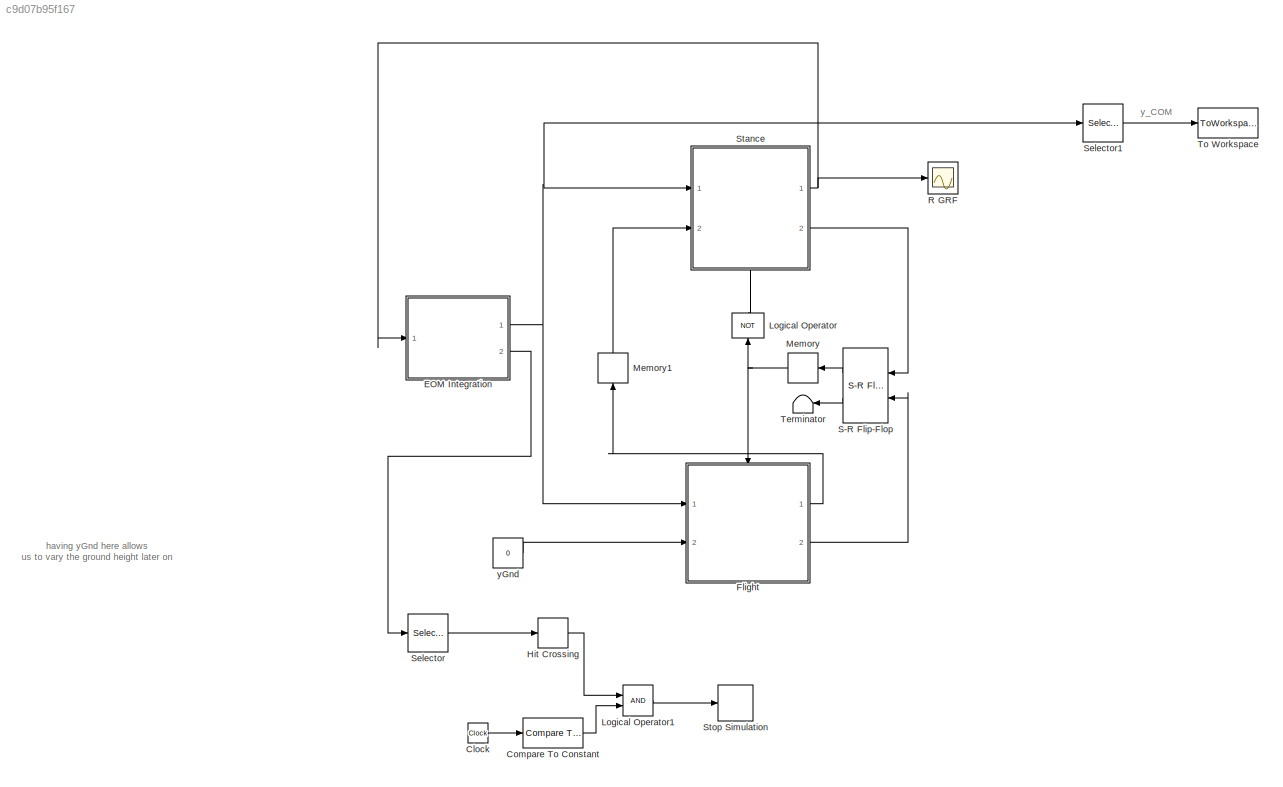
MODEL slx_c9d07b95f167
KIND model
BLOCK [Clock] Clock
BLOCK [Reference] Compare To Constant  REF=simulink/Logic and Bit
Operations/Compare
To Constant
  OutDataTypeStr = boolean
  Ports = [1, 1]
  SourceBlock = simulink/Logic and Bit\nOperations/Compare\nTo Constant
  SourceType = Compare To Constant
  ZeroCross = on
  const = 0.001
  relop = >
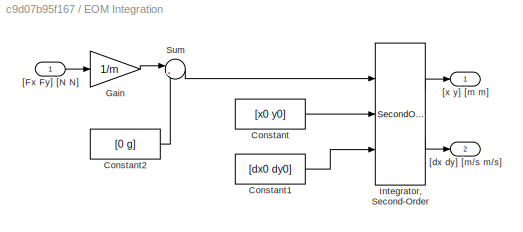
BLOCK [SubSystem] EOM Integration
  FunctionWithSeparateData = off
  MaskHideContents = off
  MinAlgLoopOccurrences = off
  Opaque = off
  Ports = [1, 2]
  PropExecContextOutsideSubsystem = off
  RTWSystemCode = Auto
  RequestExecContextInheritance = off
BLOCK [Constant] EOM Integration/Constant
  Value = [x0 y0]
BLOCK [Constant] EOM Integration/Constant1
  Value = [dx0 dy0]
BLOCK [Constant] EOM Integration/Constant2
  Value = [0 g]
BLOCK [Gain] EOM Integration/Gain
  Gain = 1/m
  OutDataTypeStr = Inherit: Inherit via internal rule
  ParamDataTypeStr = Inherit: Inherit via internal rule
  SaturateOnIntegerOverflow = off
BLOCK [SecondOrderIntegrator] EOM Integration/Integrator, Second-Order
  ICSourceDXDT = external
  ICSourceX = external
  Ports = [3, 2]
BLOCK [Sum] EOM Integration/Sum
  IconShape = round
  InputSameDT = off
  Inputs = |+-
  OutDataTypeStr = Inherit: Inherit via internal rule
  Ports = [2, 1]
  SaturateOnIntegerOverflow = off
BLOCK [Inport] EOM Integration/[Fx Fy] [N N]
  IconDisplay = Port number
BLOCK [Outport] EOM Integration/[dx dy] [m//s m//s]
  IconDisplay = Port number
  Port = 2
BLOCK [Outport] EOM Integration/[x y] [m m]
  IconDisplay = Port number
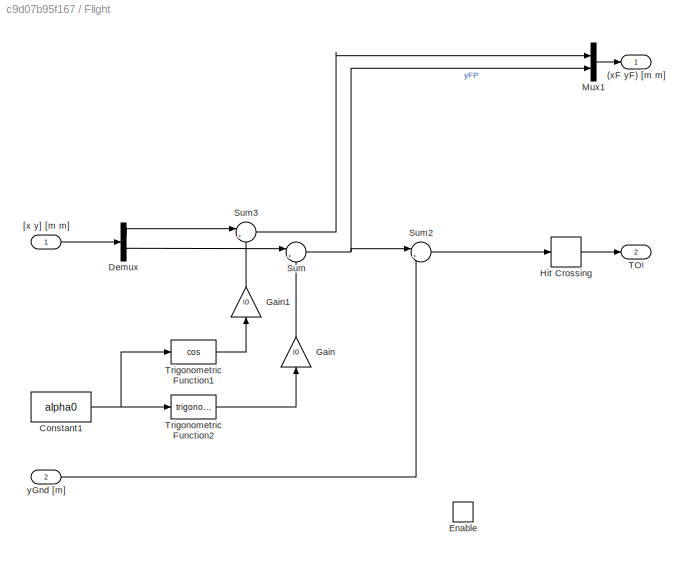
BLOCK [SubSystem] Flight
  FunctionWithSeparateData = off
  MaskHideContents = off
  MinAlgLoopOccurrences = off
  Opaque = off
  Ports = [2, 2, 1]
  PropExecContextOutsideSubsystem = off
  RTWSystemCode = Auto
  RequestExecContextInheritance = off
BLOCK [Outport] Flight/(xF yF) [m m]
  IconDisplay = Port number
  InitialOutput = 0
BLOCK [Constant] Flight/Constant1
  Value = alpha0
BLOCK [Demux] Flight/Demux
  DisplayOption = bar
  Outputs = 2
  Ports = [1, 2]
BLOCK [EnablePort] Flight/Enable
  Ports = []
  StatesWhenEnabling = reset
BLOCK [Gain] Flight/Gain
  Gain = l0
  OutDataTypeStr = Inherit: Inherit via internal rule
  ParamDataTypeStr = Inherit: Inherit via internal rule
  SaturateOnIntegerOverflow = off
BLOCK [Gain] Flight/Gain1
  Gain = l0
  OutDataTypeStr = Inherit: Inherit via internal rule
  ParamDataTypeStr = Inherit: Inherit via internal rule
  SaturateOnIntegerOverflow = off
BLOCK [HitCross] Flight/Hit Crossing
  HitCrossingDirection = falling
  Ports = [1, 1]
BLOCK [Mux] Flight/Mux1
  DisplayOption = bar
  Inputs = 2
  Ports = [2, 1]
BLOCK [Sum] Flight/Sum
  IconShape = round
  InputSameDT = off
  Inputs = |+-
  OutDataTypeStr = Inherit: Inherit via internal rule
  Ports = [2, 1]
  SaturateOnIntegerOverflow = off
BLOCK [Sum] Flight/Sum2
  IconShape = round
  InputSameDT = off
  Inputs = |+-
  OutDataTypeStr = Inherit: Inherit via internal rule
  Ports = [2, 1]
  SaturateOnIntegerOverflow = off
BLOCK [Sum] Flight/Sum3
  IconShape = round
  InputSameDT = off
  Inputs = |++
  OutDataTypeStr = Inherit: Inherit via internal rule
  Ports = [2, 1]
  SaturateOnIntegerOverflow = off
BLOCK [Outport] Flight/TO!
  IconDisplay = Port number
  InitialOutput = 0
  OutputWhenDisabled = reset
  Port = 2
BLOCK [Trigonometry] Flight/Trigonometric Function1
  Operator = cos
  Ports = [1, 1]
BLOCK [Trigonometry] Flight/Trigonometric Function2
  Ports = [1, 1]
BLOCK [Inport] Flight/[x y] [m m]
  IconDisplay = Port number
BLOCK [Inport] Flight/yGnd [m]
  IconDisplay = Port number
  Port = 2
BLOCK [HitCross] Hit Crossing
  HitCrossingDirection = falling
  Ports = [1, 1]
BLOCK [Logic] Logical Operator
  AllPortsSameDT = off
  Operator = NOT
  OutDataTypeStr = boolean
  Ports = [1, 1]
BLOCK [Logic] Logical Operator1
  AllPortsSameDT = off
  OutDataTypeStr = boolean
  Ports = [2, 1]
BLOCK [Memory] Memory
  X0 = 1
BLOCK [Memory] Memory1
  X0 = [0 0]
BLOCK [Scope] R GRF
  DataFormat = StructureWithTime
  Floating = off
  NumInputPorts = 1
  Ports = [1]
  SampleTime = 0
  ShowLegends = off
  ZoomMode = yonly
BLOCK [Reference] S-R Flip-Flop  REF=simulink_extras/Flip Flops/S-R
Flip-Flop
  Ports = [2, 2]
  SourceBlock = simulink_extras/Flip Flops/S-R\nFlip-Flop
  SourceType = SRFlipFlop
  initial_condition = 1
BLOCK [Selector] Selector
  IndexOptions = Index vector (dialog)
  Indices = 2
  InputPortWidth = 2
  OutputSizes = 1
  Ports = [1, 1]
BLOCK [Selector] Selector1
  IndexOptions = Index vector (dialog)
  Indices = 2
  InputPortWidth = 2
  OutputSizes = 1
  Ports = [1, 1]
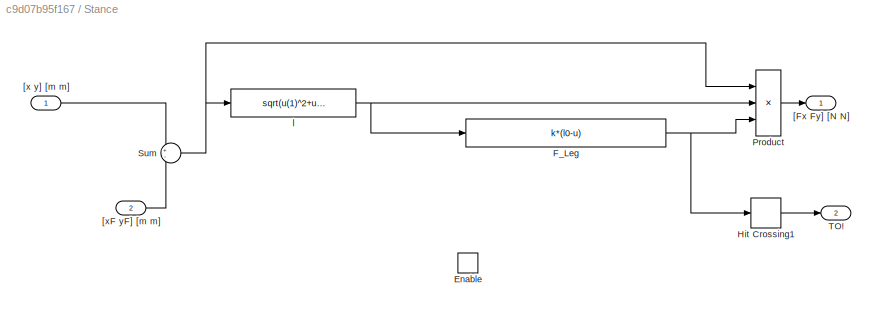
BLOCK [SubSystem] Stance
  FunctionWithSeparateData = off
  MaskHideContents = off
  MinAlgLoopOccurrences = off
  Opaque = off
  Ports = [2, 2, 1]
  PropExecContextOutsideSubsystem = off
  RTWSystemCode = Auto
  RequestExecContextInheritance = off
BLOCK [EnablePort] Stance/Enable
  Ports = []
  StatesWhenEnabling = reset
BLOCK [Fcn] Stance/F_Leg
  Expr = k*(l0-u)
BLOCK [HitCross] Stance/Hit Crossing1
  HitCrossingDirection = falling
  Ports = [1, 1]
BLOCK [Product] Stance/Product
  InputSameDT = off
  Inputs = */*
  OutDataTypeStr = Inherit: Inherit via internal rule
  Ports = [3, 1]
  SaturateOnIntegerOverflow = off
BLOCK [Sum] Stance/Sum
  IconShape = round
  InputSameDT = off
  Inputs = +-
  OutDataTypeStr = Inherit: Inherit via internal rule
  Ports = [2, 1]
  SaturateOnIntegerOverflow = off
BLOCK [Outport] Stance/TO!
  IconDisplay = Port number
  InitialOutput = 0
  OutputWhenDisabled = reset
  Port = 2
BLOCK [Outport] Stance/[Fx Fy] [N N]
  IconDisplay = Port number
  InitialOutput = [0 0]
  OutputWhenDisabled = reset
BLOCK [Inport] Stance/[x y] [m m]
  IconDisplay = Port number
BLOCK [Inport] Stance/[xF yF] [m m]
  IconDisplay = Port number
  Port = 2
BLOCK [Fcn] Stance/l
  Expr = sqrt(u(1)^2+u(2)^2)
BLOCK [Stop] Stop Simulation
BLOCK [Terminator] Terminator
BLOCK [ToWorkspace] To Workspace
  MaxDataPoints = 1
  Ports = [1]
  SampleTime = -1
  VariableName = simout_y1
BLOCK [Constant] yGnd
  Value = 0
ANNOTATION (root): having yGnd here allows us to vary the ground height later on
ANNOTATION (root): y_COM
LINE Clock:1 -> Compare To Constant:1
LINE Compare To Constant:1 -> Logical Operator1:2
LINE EOM Integration/Constant1:1 -> EOM Integration/Integrator, Second-Order:3
LINE EOM Integration/Constant2:1 -> EOM Integration/Sum:2
LINE EOM Integration/Constant:1 -> EOM Integration/Integrator, Second-Order:2
LINE EOM Integration/Gain:1 -> EOM Integration/Sum:1
LINE EOM Integration/Integrator, Second-Order:1 -> EOM Integration/[x y] [m m]:1
LINE EOM Integration/Integrator, Second-Order:2 -> EOM Integration/[dx dy] [m//s m//s]:1
LINE EOM Integration/Sum:1 -> EOM Integration/Integrator, Second-Order:1
LINE EOM Integration/[Fx Fy] [N N]:1 -> EOM Integration/Gain:1
NET EOM Integration:1 -> Flight:1, Selector1:1, Stance:1
LINE EOM Integration:2 -> Selector:1
NET Flight/Constant1:1 -> Flight/Trigonometric Function1:1, Flight/Trigonometric Function2:1
LINE Flight/Demux:1 -> Flight/Sum3:1
LINE Flight/Demux:2 -> Flight/Sum:1
LINE Flight/Gain1:1 -> Flight/Sum3:2
LINE Flight/Gain:1 -> Flight/Sum:2
LINE Flight/Hit Crossing:1 -> Flight/TO!:1
LINE Flight/Mux1:1 -> Flight/(xF yF) [m m]:1
LINE Flight/Sum2:1 -> Flight/Hit Crossing:1
LINE Flight/Sum3:1 -> Flight/Mux1:1
NET Flight/Sum:1 -> Flight/Mux1:2, Flight/Sum2:1
LINE Flight/Trigonometric Function1:1 -> Flight/Gain1:1
LINE Flight/Trigonometric Function2:1 -> Flight/Gain:1
LINE Flight/[x y] [m m]:1 -> Flight/Demux:1
LINE Flight/yGnd [m]:1 -> Flight/Sum2:2
LINE Flight:1 -> Memory1:1
LINE Flight:2 -> S-R Flip-Flop:2
LINE Hit Crossing:1 -> Logical Operator1:1
LINE Logical Operator1:1 -> Stop Simulation:1
LINE Logical Operator:1 -> Stance:enable
LINE Memory1:1 -> Stance:2
NET Memory:1 -> Flight:enable, Logical Operator:1
LINE S-R Flip-Flop:1 -> Memory:1
LINE S-R Flip-Flop:2 -> Terminator:1
LINE Selector1:1 -> To Workspace:1
LINE Selector:1 -> Hit Crossing:1
NET Stance/F_Leg:1 -> Stance/Hit Crossing1:1, Stance/Product:3
LINE Stance/Hit Crossing1:1 -> Stance/TO!:1
LINE Stance/Product:1 -> Stance/[Fx Fy] [N N]:1
NET Stance/Sum:1 -> Stance/Product:1, Stance/l:1
LINE Stance/[x y] [m m]:1 -> Stance/Sum:1
LINE Stance/[xF yF] [m m]:1 -> Stance/Sum:2
NET Stance/l:1 -> Stance/F_Leg:1, Stance/Product:2
NET Stance:1 -> EOM Integration:1, R GRF:1
LINE Stance:2 -> S-R Flip-Flop:1
LINE yGnd:1 -> Flight:2
note: NET lines group one-source signal fan-out (src -> all destinations, sorted); 1:1 wires keep LINE
